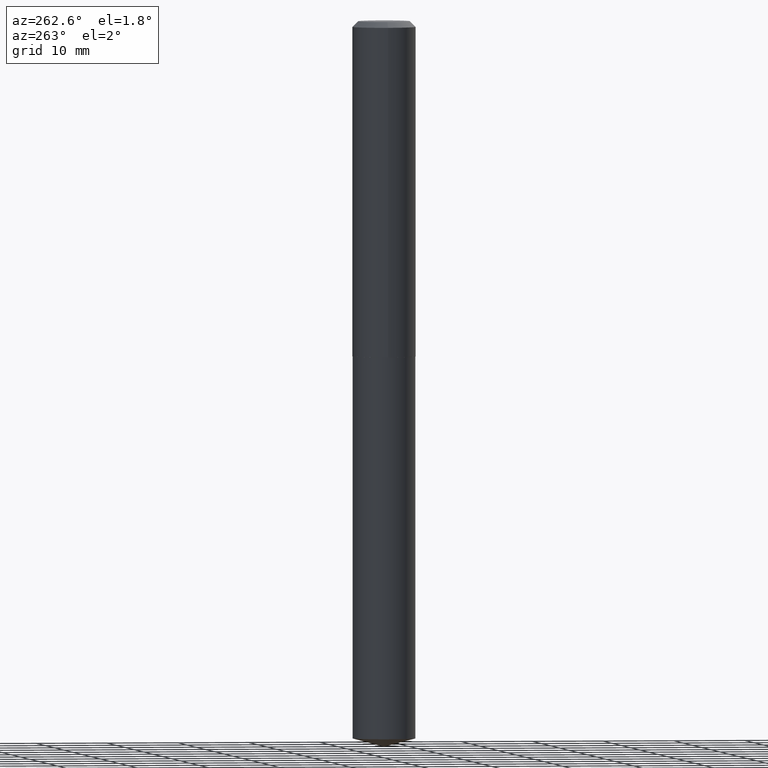
[diagram: clean part render]
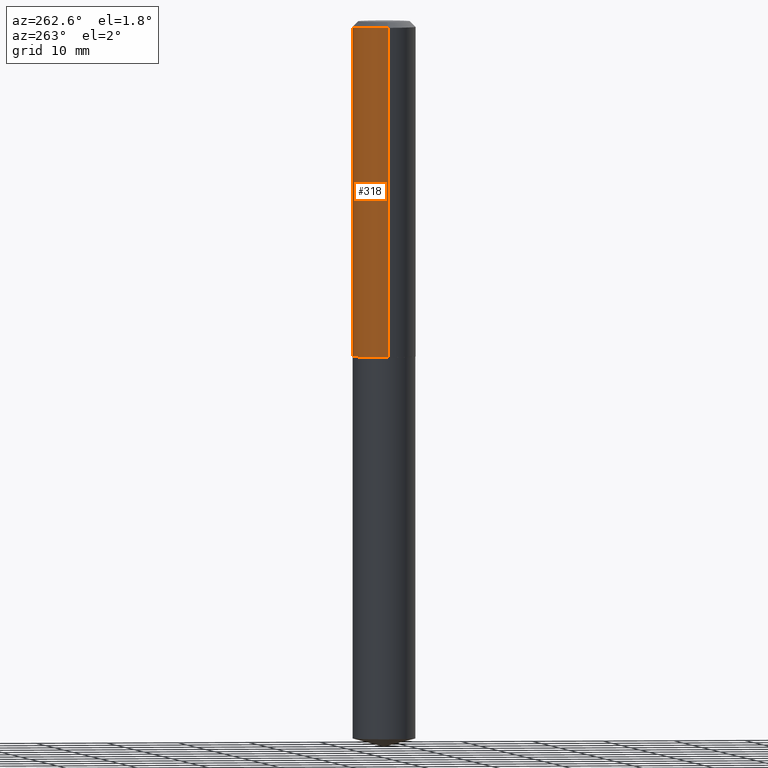
[diagram: same view with one face highlighted and labeled with its STEP entity id]
A machine part, auxiliary view. The second image highlights one B-rep face of the part: STEP entity #318.
In plain terms, the highlighted cylindrical surface (edge-blend (fillet) strip) has radius 4.4196 mm, axis along (-0, 0, 1).
Its self-contained STEP definition (entity closure, byte-faithful):
#11 = AXIS2_PLACEMENT_3D ( 'NONE', #24, #149, #271 ) ;
#24 = CARTESIAN_POINT ( 'NONE',  ( 0.000000000000000000, 0.000000000000000000, 0.000000000000000000 ) ) ;
#27 = VERTEX_POINT ( 'NONE', #160 ) ;
#34 = DIRECTION ( 'NONE',  ( 1.000000000000000000, -6.982962677686266711E-15, 0.000000000000000000 ) ) ;
#36 = CARTESIAN_POINT ( 'NONE',  ( -0.1740000000000000990, 1.236344360222575027E-15, -8.558947057043541363E-30 ) ) ;
#60 = EDGE_CURVE ( 'NONE', #182, #27, #127, .T. ) ;
#65 = CARTESIAN_POINT ( 'NONE',  ( 7.642090019328602662E-31, -1.091087918388490267E-16, -0.03125000000000020817 ) ) ;
#86 = VECTOR ( 'NONE', #360, 39.37007874015748143 ) ;
#97 = CARTESIAN_POINT ( 'NONE',  ( 0.1740000000000002101, -7.665547279430124304E-15, -1.847499999999999920 ) ) ;
#102 = VERTEX_POINT ( 'NONE', #97 ) ;
#114 = AXIS2_PLACEMENT_3D ( 'NONE', #65, #191, #34 ) ;
#122 = ORIENTED_EDGE ( 'NONE', *, *, #276, .F. ) ;
#127 = LINE ( 'NONE', #36, #286 ) ;
#131 = DIRECTION ( 'NONE',  ( -2.445468806185136877E-29, 3.491481338843145188E-15, 1.000000000000000000 ) ) ;
#146 = CARTESIAN_POINT ( 'NONE',  ( 4.518003619427039369E-29, -6.450511773512711278E-15, -1.847499999999999920 ) ) ;
#149 = DIRECTION ( 'NONE',  ( -2.445468806185136597E-29, 3.491481338843145583E-15, 1.000000000000000000 ) ) ;
#154 = EDGE_LOOP ( 'NONE', ( #219, #386, #197, #122 ) ) ;
#160 = CARTESIAN_POINT ( 'NONE',  ( -0.1739999999999999880, -2.043465922453203979E-15, -0.03125000000000020817 ) ) ;
#174 = CIRCLE ( 'NONE', #378, 0.1740000000000002101 ) ;
#176 = DIRECTION ( 'NONE',  ( 1.000000000000000000, -6.982962677686269077E-15, 0.000000000000000000 ) ) ;
#181 = CYLINDRICAL_SURFACE ( 'NONE', #11, 0.1740000000000000990 ) ;
#182 = VERTEX_POINT ( 'NONE', #322 ) ;
#191 = DIRECTION ( 'NONE',  ( -2.445468806185136597E-29, 3.491481338843145583E-15, 1.000000000000000000 ) ) ;
#193 = VERTEX_POINT ( 'NONE', #377 ) ;
#197 = ORIENTED_EDGE ( 'NONE', *, *, #388, .F. ) ;
#205 = DIRECTION ( 'NONE',  ( -2.445468806185136597E-29, 3.491481338843145583E-15, 1.000000000000000000 ) ) ;
#217 = CARTESIAN_POINT ( 'NONE',  ( 0.1740000000000000990, -1.215035505917411252E-15, 8.484547589884934838E-30 ) ) ;
#219 = ORIENTED_EDGE ( 'NONE', *, *, #239, .T. ) ;
#239 = EDGE_CURVE ( 'NONE', #102, #182, #174, .T. ) ;
#271 = DIRECTION ( 'NONE',  ( 1.000000000000000000, -6.982962677686267499E-15, 4.876176775795936914E-29 ) ) ;
#273 = CIRCLE ( 'NONE', #114, 0.1739999999999999880 ) ;
#276 = EDGE_CURVE ( 'NONE', #102, #193, #328, .T. ) ;
#286 = VECTOR ( 'NONE', #131, 39.37007874015748143 ) ;
#318 = ADVANCED_FACE ( 'NONE', ( #326 ), #181, .T. ) ;
#322 = CARTESIAN_POINT ( 'NONE',  ( -0.1740000000000002101, -5.214167413290135067E-15, -1.847499999999999920 ) ) ;
#326 = FACE_OUTER_BOUND ( 'NONE', #154, .T. ) ;
#328 = LINE ( 'NONE', #217, #86 ) ;
#360 = DIRECTION ( 'NONE',  ( -2.445468806185136877E-29, 3.491481338843145188E-15, 1.000000000000000000 ) ) ;
#377 = CARTESIAN_POINT ( 'NONE',  ( 0.1739999999999999880, -1.324144297756259366E-15, -0.03125000000000020817 ) ) ;
#378 = AXIS2_PLACEMENT_3D ( 'NONE', #146, #205, #176 ) ;
#386 = ORIENTED_EDGE ( 'NONE', *, *, #60, .T. ) ;
#388 = EDGE_CURVE ( 'NONE', #193, #27, #273, .T. ) ;